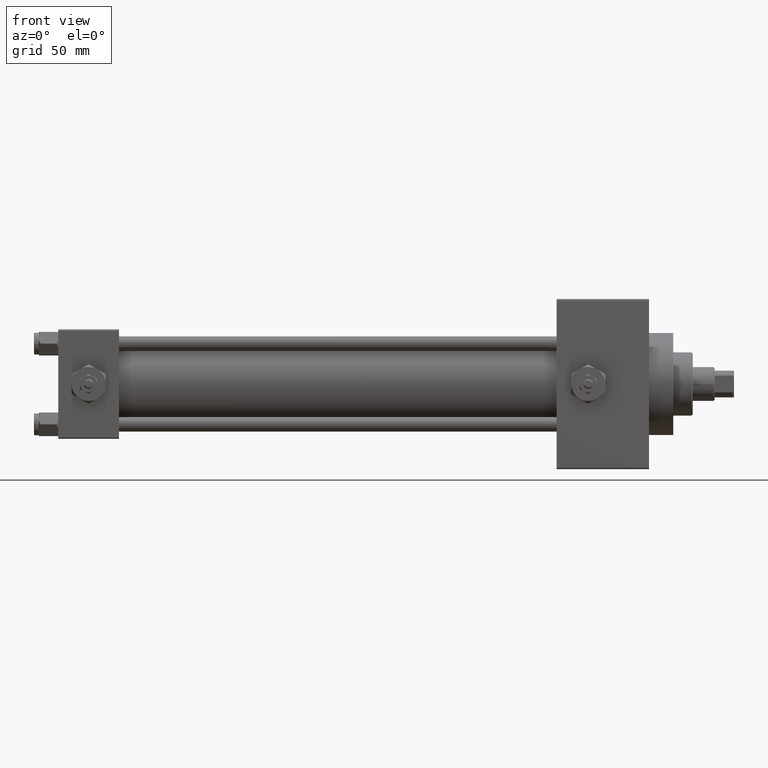
[diagram: clean part render]
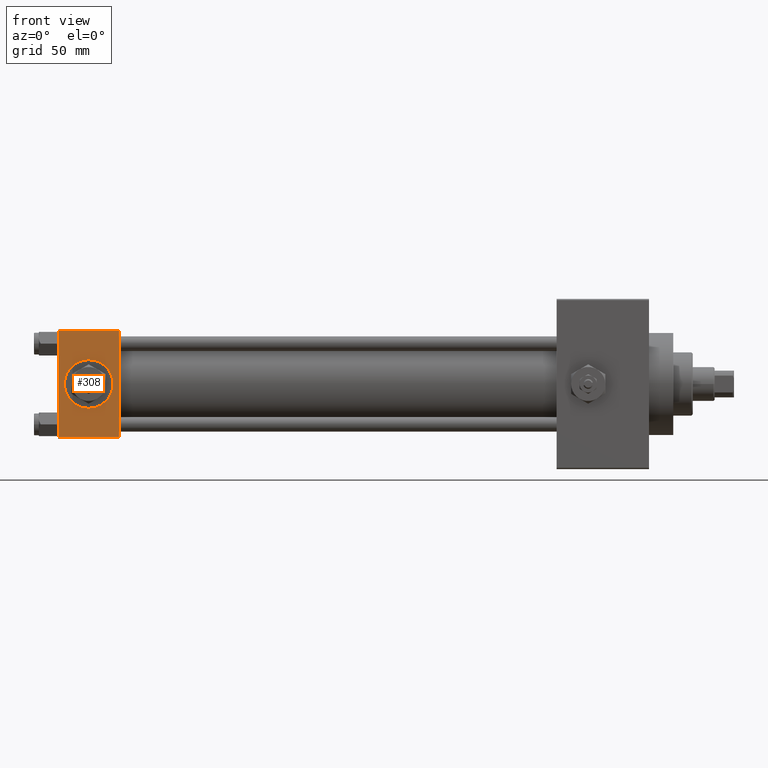
[diagram: same view with one face highlighted and labeled with its STEP entity id]
A machine part, front view. The second image highlights one B-rep face of the part: STEP entity #308.
In plain terms, the highlighted planar face has unit normal (0, 1, 0).
Its self-contained STEP definition (entity closure, byte-faithful):
#308 = ADVANCED_FACE ( 'NONE', ( #7210, #11186 ), #6964, .F. ) ;
#1880 = CARTESIAN_POINT ( 'NONE',  ( 25.00000000000000000, -22.50000000000000000, 22.00000000000000000 ) ) ;
#2197 = CARTESIAN_POINT ( 'NONE',  ( 25.00000000000000000, -22.50000000000000000, 22.50000000000000000 ) ) ;
#2334 = EDGE_CURVE ( 'NONE', #39128, #38711, #43143, .T. ) ;
#2567 = DIRECTION ( 'NONE',  ( 0.000000000000000000, 0.000000000000000000, -1.000000000000000000 ) ) ;
#3016 = EDGE_CURVE ( 'NONE', #24447, #38711, #36838, .T. ) ;
#4209 = CARTESIAN_POINT ( 'NONE',  ( 25.00000000000000000, -22.50000000000000000, -21.99999999999997158 ) ) ;
#4318 = AXIS2_PLACEMENT_3D ( 'NONE', #26480, #41614, #38366 ) ;
#6425 = CARTESIAN_POINT ( 'NONE',  ( 0.000000000000000000, -22.50000000000000000, 22.50000000000000000 ) ) ;
#6964 = PLANE ( 'NONE',  #28191 ) ;
#7210 = FACE_BOUND ( 'NONE', #10357, .T. ) ;
#7310 = ORIENTED_EDGE ( 'NONE', *, *, #3016, .T. ) ;
#9215 = VERTEX_POINT ( 'NONE', #16710 ) ;
#9586 = ORIENTED_EDGE ( 'NONE', *, *, #47885, .T. ) ;
#10357 = EDGE_LOOP ( 'NONE', ( #29147, #48489 ) ) ;
#10722 = CIRCLE ( 'NONE', #28129, 9.999999999999996447 ) ;
#11186 = FACE_OUTER_BOUND ( 'NONE', #41289, .T. ) ;
#14157 = EDGE_CURVE ( 'NONE', #14995, #24447, #28026, .T. ) ;
#14161 = DIRECTION ( 'NONE',  ( 0.000000000000000000, -0.000000000000000000, 1.000000000000000000 ) ) ;
#14995 = VERTEX_POINT ( 'NONE', #21312 ) ;
#16710 = CARTESIAN_POINT ( 'NONE',  ( 12.50000000000000178, -22.50000000000000000, 9.999999999999996447 ) ) ;
#17090 = DIRECTION ( 'NONE',  ( 0.000000000000000000, 0.000000000000000000, -1.000000000000000000 ) ) ;
#17693 = CARTESIAN_POINT ( 'NONE',  ( 12.50000000000000000, -22.50000000000000000, -9.999999999999996447 ) ) ;
#18333 = LINE ( 'NONE', #44629, #45834 ) ;
#21205 = CARTESIAN_POINT ( 'NONE',  ( 25.00000000000000000, -22.50000000000000000, -21.99999999999998579 ) ) ;
#21312 = CARTESIAN_POINT ( 'NONE',  ( 0.000000000000000000, -22.50000000000000000, 22.00000000000000000 ) ) ;
#24447 = VERTEX_POINT ( 'NONE', #36689 ) ;
#24616 = VERTEX_POINT ( 'NONE', #17693 ) ;
#26480 = CARTESIAN_POINT ( 'NONE',  ( 12.50000000000000000, -22.50000000000000000, 0.000000000000000000 ) ) ;
#28026 = LINE ( 'NONE', #6425, #48426 ) ;
#28129 = AXIS2_PLACEMENT_3D ( 'NONE', #40538, #36584, #2567 ) ;
#28191 = AXIS2_PLACEMENT_3D ( 'NONE', #33265, #37233, #14161 ) ;
#29147 = ORIENTED_EDGE ( 'NONE', *, *, #37870, .F. ) ;
#33265 = CARTESIAN_POINT ( 'NONE',  ( 25.00000000000000000, -22.50000000000000000, 22.50000000000000000 ) ) ;
#33890 = VECTOR ( 'NONE', #37085, 1000.000000000000000 ) ;
#36147 = VECTOR ( 'NONE', #17090, 1000.000000000000000 ) ;
#36584 = DIRECTION ( 'NONE',  ( 0.000000000000000000, -1.000000000000000000, -8.673617379884036705E-17 ) ) ;
#36689 = CARTESIAN_POINT ( 'NONE',  ( 0.000000000000000000, -22.50000000000000000, -21.99999999999997158 ) ) ;
#36696 = ORIENTED_EDGE ( 'NONE', *, *, #14157, .T. ) ;
#36838 = LINE ( 'NONE', #21205, #33890 ) ;
#37085 = DIRECTION ( 'NONE',  ( 1.000000000000000000, 0.000000000000000000, 0.000000000000000000 ) ) ;
#37233 = DIRECTION ( 'NONE',  ( -0.000000000000000000, 1.000000000000000000, 0.000000000000000000 ) ) ;
#37870 = EDGE_CURVE ( 'NONE', #24616, #9215, #41570, .T. ) ;
#38366 = DIRECTION ( 'NONE',  ( 0.000000000000000000, 0.000000000000000000, -1.000000000000000000 ) ) ;
#38711 = VERTEX_POINT ( 'NONE', #4209 ) ;
#39128 = VERTEX_POINT ( 'NONE', #1880 ) ;
#39637 = EDGE_CURVE ( 'NONE', #9215, #24616, #10722, .T. ) ;
#40538 = CARTESIAN_POINT ( 'NONE',  ( 12.50000000000000000, -22.50000000000000000, 0.000000000000000000 ) ) ;
#41289 = EDGE_LOOP ( 'NONE', ( #36696, #7310, #42724, #9586 ) ) ;
#41570 = CIRCLE ( 'NONE', #4318, 9.999999999999996447 ) ;
#41614 = DIRECTION ( 'NONE',  ( 0.000000000000000000, -1.000000000000000000, -8.673617379884036705E-17 ) ) ;
#42724 = ORIENTED_EDGE ( 'NONE', *, *, #2334, .F. ) ;
#43143 = LINE ( 'NONE', #2197, #36147 ) ;
#43397 = DIRECTION ( 'NONE',  ( 0.000000000000000000, 0.000000000000000000, -1.000000000000000000 ) ) ;
#44629 = CARTESIAN_POINT ( 'NONE',  ( 25.00000000000000000, -22.50000000000000000, 22.00000000000000000 ) ) ;
#45123 = DIRECTION ( 'NONE',  ( -1.000000000000000000, 0.000000000000000000, 0.000000000000000000 ) ) ;
#45834 = VECTOR ( 'NONE', #45123, 1000.000000000000000 ) ;
#47885 = EDGE_CURVE ( 'NONE', #39128, #14995, #18333, .T. ) ;
#48426 = VECTOR ( 'NONE', #43397, 1000.000000000000000 ) ;
#48489 = ORIENTED_EDGE ( 'NONE', *, *, #39637, .F. ) ;